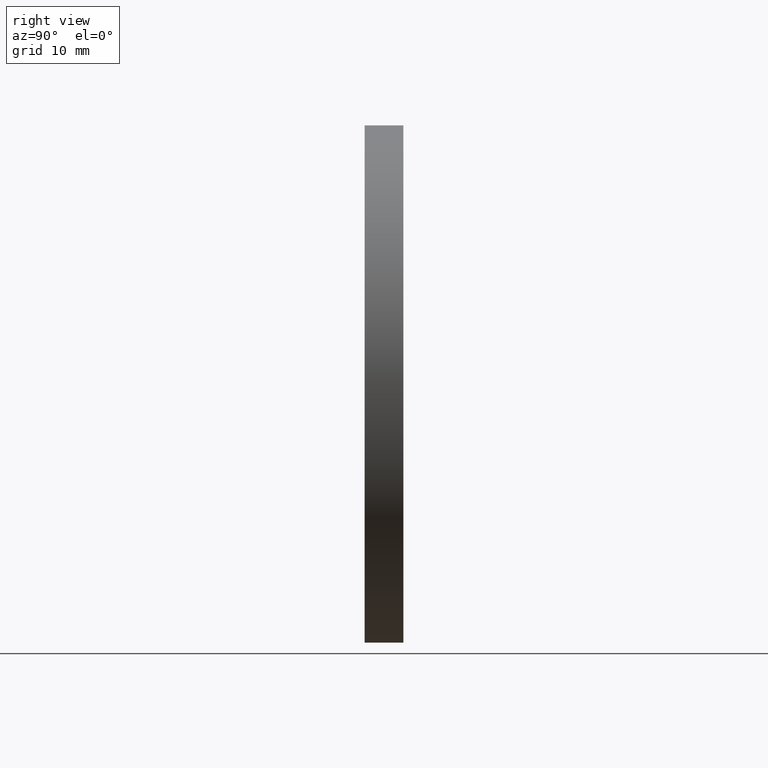
[diagram: clean part render]
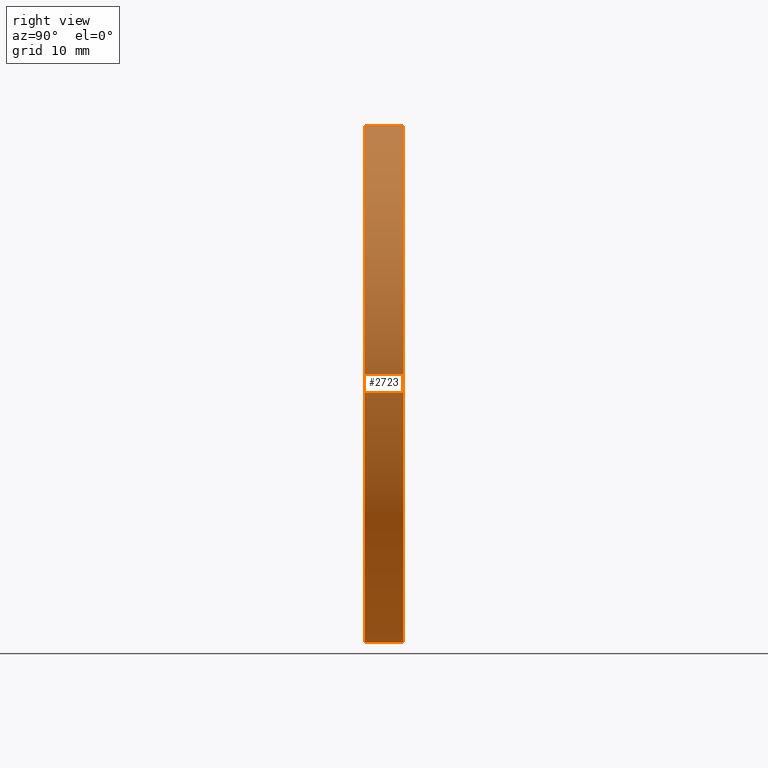
[diagram: same view with one face highlighted and labeled with its STEP entity id]
A machine part, right view. The second image highlights one B-rep face of the part: STEP entity #2723.
In plain terms, the highlighted cylindrical surface (partial cylindrical patch) has radius 40 mm, axis along (-0, -1, -0).
Its self-contained STEP definition (entity closure, byte-faithful):
#356 = CARTESIAN_POINT ( 'NONE',  ( 0.0000000000000000000, 6.000000000000000000, -40.00000000000000000 ) ) ;
#431 = ORIENTED_EDGE ( 'NONE', *, *, #7280, .T. ) ;
#499 = CARTESIAN_POINT ( 'NONE',  ( 0.0000000000000000000, 6.000000000000000000, -40.00000000000000000 ) ) ;
#883 = CARTESIAN_POINT ( 'NONE',  ( 0.0000000000000000000, 6.000000000000000000, 0.0000000000000000000 ) ) ;
#980 = CARTESIAN_POINT ( 'NONE',  ( 0.0000000000000000000, 6.000000000000000000, 0.0000000000000000000 ) ) ;
#1012 = DIRECTION ( 'NONE',  ( -0.0000000000000000000, -1.000000000000000000, -0.0000000000000000000 ) ) ;
#1176 = EDGE_CURVE ( 'NONE', #8454, #10887, #10854, .T. ) ;
#1481 = VERTEX_POINT ( 'NONE', #6303 ) ;
#1550 = DIRECTION ( 'NONE',  ( -0.0000000000000000000, -1.000000000000000000, -0.0000000000000000000 ) ) ;
#1561 = LINE ( 'NONE', #2567, #11723 ) ;
#2033 = DIRECTION ( 'NONE',  ( 0.0000000000000000000, 0.0000000000000000000, 1.000000000000000000 ) ) ;
#2120 = AXIS2_PLACEMENT_3D ( 'NONE', #883, #1012, #12104 ) ;
#2567 = CARTESIAN_POINT ( 'NONE',  ( 4.898587196589413000E-015, 6.000000000000000000, 40.00000000000000000 ) ) ;
#2723 = ADVANCED_FACE ( 'NONE', ( #9253 ), #9105, .T. ) ;
#3531 = ORIENTED_EDGE ( 'NONE', *, *, #5829, .F. ) ;
#3736 = EDGE_CURVE ( 'NONE', #1481, #10887, #8446, .T. ) ;
#4434 = CIRCLE ( 'NONE', #13019, 40.00000000000000000 ) ;
#4822 = DIRECTION ( 'NONE',  ( 0.0000000000000000000, 0.0000000000000000000, 1.000000000000000000 ) ) ;
#5829 = EDGE_CURVE ( 'NONE', #12418, #8454, #4434, .T. ) ;
#5901 = CARTESIAN_POINT ( 'NONE',  ( 0.0000000000000000000, 0.0000000000000000000, -40.00000000000000000 ) ) ;
#6064 = DIRECTION ( 'NONE',  ( 0.0000000000000000000, 1.000000000000000000, 0.0000000000000000000 ) ) ;
#6303 = CARTESIAN_POINT ( 'NONE',  ( 4.898587196589413000E-015, 0.0000000000000000000, 40.00000000000000000 ) ) ;
#6765 = DIRECTION ( 'NONE',  ( 0.0000000000000000000, 1.000000000000000000, 0.0000000000000000000 ) ) ;
#7280 = EDGE_CURVE ( 'NONE', #12418, #1481, #1561, .T. ) ;
#8011 = VECTOR ( 'NONE', #1550, 1000.000000000000000 ) ;
#8446 = CIRCLE ( 'NONE', #12826, 40.00000000000000000 ) ;
#8454 = VERTEX_POINT ( 'NONE', #356 ) ;
#9105 = CYLINDRICAL_SURFACE ( 'NONE', #2120, 40.00000000000000000 ) ;
#9253 = FACE_OUTER_BOUND ( 'NONE', #10900, .T. ) ;
#9956 = CARTESIAN_POINT ( 'NONE',  ( 0.0000000000000000000, 0.0000000000000000000, 0.0000000000000000000 ) ) ;
#10854 = LINE ( 'NONE', #499, #8011 ) ;
#10858 = ORIENTED_EDGE ( 'NONE', *, *, #3736, .T. ) ;
#10887 = VERTEX_POINT ( 'NONE', #5901 ) ;
#10900 = EDGE_LOOP ( 'NONE', ( #3531, #431, #10858, #11489 ) ) ;
#11477 = CARTESIAN_POINT ( 'NONE',  ( 4.898587196589413000E-015, 6.000000000000000000, 40.00000000000000000 ) ) ;
#11489 = ORIENTED_EDGE ( 'NONE', *, *, #1176, .F. ) ;
#11723 = VECTOR ( 'NONE', #12712, 1000.000000000000000 ) ;
#12104 = DIRECTION ( 'NONE',  ( 0.0000000000000000000, 0.0000000000000000000, -1.000000000000000000 ) ) ;
#12418 = VERTEX_POINT ( 'NONE', #11477 ) ;
#12712 = DIRECTION ( 'NONE',  ( -0.0000000000000000000, -1.000000000000000000, -0.0000000000000000000 ) ) ;
#12826 = AXIS2_PLACEMENT_3D ( 'NONE', #9956, #6765, #4822 ) ;
#13019 = AXIS2_PLACEMENT_3D ( 'NONE', #980, #6064, #2033 ) ;